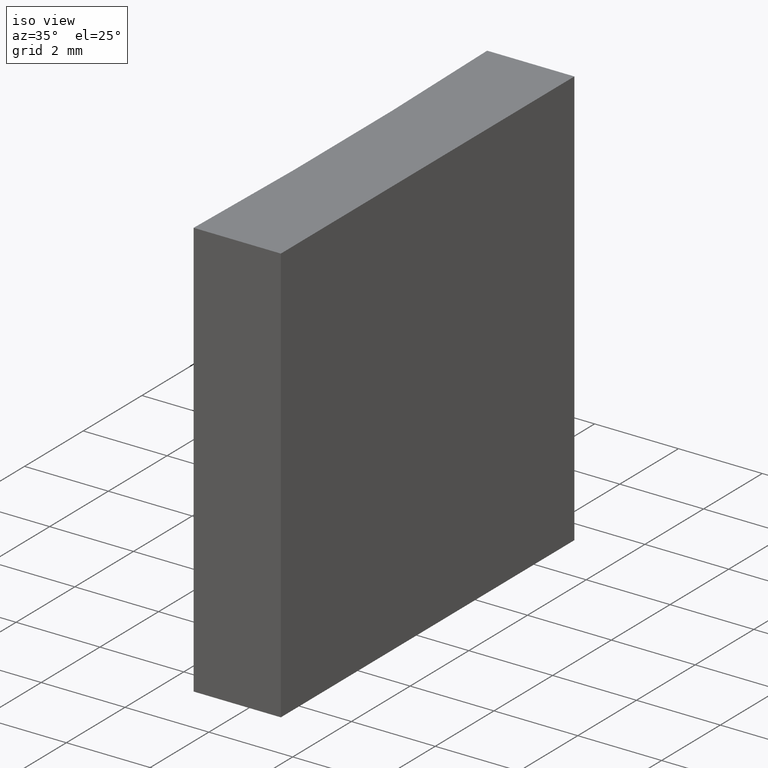
[diagram: clean part render]
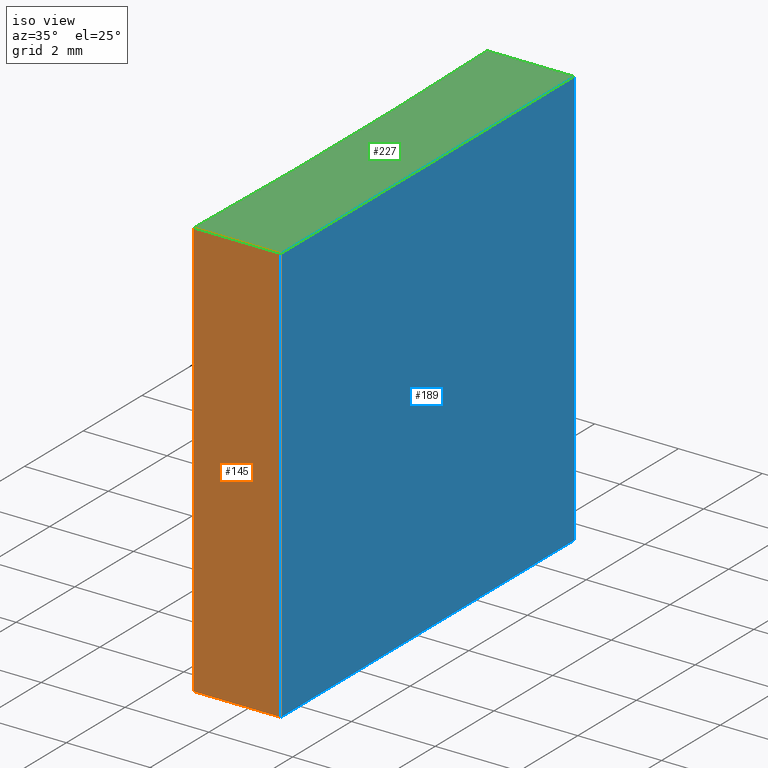
[diagram: same view with three faces highlighted in distinct colors, each labeled with its STEP entity id]
A machine part, iso view with three faces highlighted in distinct colors.
Their STEP definitions:

[orange] entity #145 — the highlighted planar face has unit normal (0, 1, -0).
#8 = ORIENTED_EDGE ( 'NONE', *, *, #207, .F. ) ;
#14 = EDGE_CURVE ( 'NONE', #208, #173, #41, .T. ) ;
#15 = FACE_OUTER_BOUND ( 'NONE', #77, .T. ) ;
#17 = AXIS2_PLACEMENT_3D ( 'NONE', #213, #105, #110 ) ;
#22 = ORIENTED_EDGE ( 'NONE', *, *, #14, .T. ) ;
#28 = VECTOR ( 'NONE', #178, 1000.000000000000000 ) ;
#30 = CARTESIAN_POINT ( 'NONE',  ( 70.94557387853004116, -51.01151266271151030, 10.00000000000000000 ) ) ;
#32 = DIRECTION ( 'NONE',  ( 1.000000000000000000, -6.672013369141570542E-15, 0.000000000000000000 ) ) ;
#36 = PLANE ( 'NONE',  #17 ) ;
#41 = LINE ( 'NONE', #187, #165 ) ;
#43 = ORIENTED_EDGE ( 'NONE', *, *, #57, .T. ) ;
#57 = EDGE_CURVE ( 'NONE', #61, #208, #119, .T. ) ;
#61 = VERTEX_POINT ( 'NONE', #85 ) ;
#68 = DIRECTION ( 'NONE',  ( -0.000000000000000000, -0.000000000000000000, -1.000000000000000000 ) ) ;
#77 = EDGE_LOOP ( 'NONE', ( #22, #8, #146, #43 ) ) ;
#85 = CARTESIAN_POINT ( 'NONE',  ( 70.94557387853004116, -51.01151266271151030, 10.00000000000000000 ) ) ;
#96 = VECTOR ( 'NONE', #32, 1000.000000000000000 ) ;
#105 = DIRECTION ( 'NONE',  ( 6.672013369141570542E-15, 1.000000000000000000, -0.000000000000000000 ) ) ;
#110 = DIRECTION ( 'NONE',  ( -1.000000000000000000, 6.672013369141570542E-15, 0.000000000000000000 ) ) ;
#119 = LINE ( 'NONE', #234, #28 ) ;
#131 = VERTEX_POINT ( 'NONE', #133 ) ;
#133 = CARTESIAN_POINT ( 'NONE',  ( 73.02557387853003945, -51.01151266271152451, 10.00000000000000000 ) ) ;
#135 = LINE ( 'NONE', #153, #223 ) ;
#137 = EDGE_CURVE ( 'NONE', #61, #131, #196, .T. ) ;
#138 = CARTESIAN_POINT ( 'NONE',  ( 70.94557387853004116, -51.01151266271151030, 0.000000000000000000 ) ) ;
#145 = ADVANCED_FACE ( 'NONE', ( #15 ), #36, .F. ) ;
#146 = ORIENTED_EDGE ( 'NONE', *, *, #137, .F. ) ;
#153 = CARTESIAN_POINT ( 'NONE',  ( 73.02557387853003945, -51.01151266271152451, 10.00000000000000000 ) ) ;
#165 = VECTOR ( 'NONE', #168, 1000.000000000000000 ) ;
#168 = DIRECTION ( 'NONE',  ( 1.000000000000000000, -6.672013369141570542E-15, 0.000000000000000000 ) ) ;
#173 = VERTEX_POINT ( 'NONE', #218 ) ;
#178 = DIRECTION ( 'NONE',  ( -0.000000000000000000, -0.000000000000000000, -1.000000000000000000 ) ) ;
#187 = CARTESIAN_POINT ( 'NONE',  ( 70.94557387853004116, -51.01151266271151030, 0.000000000000000000 ) ) ;
#196 = LINE ( 'NONE', #30, #96 ) ;
#207 = EDGE_CURVE ( 'NONE', #131, #173, #135, .T. ) ;
#208 = VERTEX_POINT ( 'NONE', #138 ) ;
#213 = CARTESIAN_POINT ( 'NONE',  ( 70.94557387853004116, -51.01151266271151030, 10.00000000000000000 ) ) ;
#218 = CARTESIAN_POINT ( 'NONE',  ( 73.02557387853003945, -51.01151266271152451, 0.000000000000000000 ) ) ;
#223 = VECTOR ( 'NONE', #68, 1000.000000000000000 ) ;
#234 = CARTESIAN_POINT ( 'NONE',  ( 70.94557387853004116, -51.01151266271151030, 10.00000000000000000 ) ) ;

[blue] entity #189 — the highlighted planar face has unit normal (-1, 0, 0).
#2 = PLANE ( 'NONE',  #80 ) ;
#21 = EDGE_CURVE ( 'NONE', #224, #128, #205, .T. ) ;
#23 = DIRECTION ( 'NONE',  ( -0.000000000000000000, -0.000000000000000000, -1.000000000000000000 ) ) ;
#25 = ORIENTED_EDGE ( 'NONE', *, *, #21, .F. ) ;
#39 = VECTOR ( 'NONE', #87, 1000.000000000000000 ) ;
#42 = CARTESIAN_POINT ( 'NONE',  ( 73.02557387853005366, -41.01151266271152451, 10.00000000000000000 ) ) ;
#52 = DIRECTION ( 'NONE',  ( -1.387778780781445478E-15, -1.000000000000000000, 0.000000000000000000 ) ) ;
#68 = DIRECTION ( 'NONE',  ( -0.000000000000000000, -0.000000000000000000, -1.000000000000000000 ) ) ;
#72 = CARTESIAN_POINT ( 'NONE',  ( 73.02557387853005366, -41.01151266271152451, 10.00000000000000000 ) ) ;
#73 = CARTESIAN_POINT ( 'NONE',  ( 73.02557387853005366, -41.01151266271152451, 10.00000000000000000 ) ) ;
#80 = AXIS2_PLACEMENT_3D ( 'NONE', #72, #152, #52 ) ;
#82 = EDGE_LOOP ( 'NONE', ( #192, #25, #125, #204 ) ) ;
#87 = DIRECTION ( 'NONE',  ( 1.387778780781445478E-15, 1.000000000000000000, -0.000000000000000000 ) ) ;
#93 = VECTOR ( 'NONE', #23, 1000.000000000000000 ) ;
#103 = CARTESIAN_POINT ( 'NONE',  ( 73.02557387853005366, -41.01151266271152451, 0.000000000000000000 ) ) ;
#116 = LINE ( 'NONE', #176, #39 ) ;
#125 = ORIENTED_EDGE ( 'NONE', *, *, #232, .F. ) ;
#126 = VECTOR ( 'NONE', #177, 1000.000000000000000 ) ;
#128 = VERTEX_POINT ( 'NONE', #103 ) ;
#131 = VERTEX_POINT ( 'NONE', #133 ) ;
#133 = CARTESIAN_POINT ( 'NONE',  ( 73.02557387853003945, -51.01151266271152451, 10.00000000000000000 ) ) ;
#135 = LINE ( 'NONE', #153, #223 ) ;
#142 = FACE_OUTER_BOUND ( 'NONE', #82, .T. ) ;
#152 = DIRECTION ( 'NONE',  ( -1.000000000000000000, 1.387778780781445478E-15, 0.000000000000000000 ) ) ;
#153 = CARTESIAN_POINT ( 'NONE',  ( 73.02557387853003945, -51.01151266271152451, 10.00000000000000000 ) ) ;
#173 = VERTEX_POINT ( 'NONE', #218 ) ;
#176 = CARTESIAN_POINT ( 'NONE',  ( 73.02557387853005366, -41.01151266271152451, 0.000000000000000000 ) ) ;
#177 = DIRECTION ( 'NONE',  ( 1.387778780781445478E-15, 1.000000000000000000, -0.000000000000000000 ) ) ;
#184 = EDGE_CURVE ( 'NONE', #173, #128, #116, .T. ) ;
#189 = ADVANCED_FACE ( 'NONE', ( #142 ), #2, .F. ) ;
#192 = ORIENTED_EDGE ( 'NONE', *, *, #184, .T. ) ;
#194 = CARTESIAN_POINT ( 'NONE',  ( 73.02557387853005366, -41.01151266271152451, 10.00000000000000000 ) ) ;
#204 = ORIENTED_EDGE ( 'NONE', *, *, #207, .T. ) ;
#205 = LINE ( 'NONE', #42, #93 ) ;
#207 = EDGE_CURVE ( 'NONE', #131, #173, #135, .T. ) ;
#214 = LINE ( 'NONE', #194, #126 ) ;
#218 = CARTESIAN_POINT ( 'NONE',  ( 73.02557387853003945, -51.01151266271152451, 0.000000000000000000 ) ) ;
#223 = VECTOR ( 'NONE', #68, 1000.000000000000000 ) ;
#224 = VERTEX_POINT ( 'NONE', #73 ) ;
#232 = EDGE_CURVE ( 'NONE', #131, #224, #214, .T. ) ;

[green] entity #227 — the highlighted planar face has unit normal (0, 0, 1).
#7 = VERTEX_POINT ( 'NONE', #112 ) ;
#16 = DIRECTION ( 'NONE',  ( 1.000000000000000000, 0.000000000000000000, -0.000000000000000000 ) ) ;
#30 = CARTESIAN_POINT ( 'NONE',  ( 70.94557387853004116, -51.01151266271151030, 10.00000000000000000 ) ) ;
#31 = EDGE_CURVE ( 'NONE', #224, #7, #94, .T. ) ;
#32 = DIRECTION ( 'NONE',  ( 1.000000000000000000, -6.672013369141570542E-15, 0.000000000000000000 ) ) ;
#50 = DIRECTION ( 'NONE',  ( -1.000000000000000000, -0.000000000000000000, -0.000000000000000000 ) ) ;
#61 = VERTEX_POINT ( 'NONE', #85 ) ;
#63 = ORIENTED_EDGE ( 'NONE', *, *, #186, .T. ) ;
#66 = DIRECTION ( 'NONE',  ( 1.000000000000000000, 0.000000000000000000, 0.000000000000000000 ) ) ;
#73 = CARTESIAN_POINT ( 'NONE',  ( 73.02557387853005366, -41.01151266271152451, 10.00000000000000000 ) ) ;
#85 = CARTESIAN_POINT ( 'NONE',  ( 70.94557387853004116, -51.01151266271151030, 10.00000000000000000 ) ) ;
#94 = LINE ( 'NONE', #108, #129 ) ;
#96 = VECTOR ( 'NONE', #32, 1000.000000000000000 ) ;
#99 = EDGE_LOOP ( 'NONE', ( #63, #100, #229, #150 ) ) ;
#100 = ORIENTED_EDGE ( 'NONE', *, *, #137, .T. ) ;
#101 = DIRECTION ( 'NONE',  ( -0.000000000000000000, -0.000000000000000000, -1.000000000000000000 ) ) ;
#108 = CARTESIAN_POINT ( 'NONE',  ( 70.94557387853005537, -41.01151266271152451, 10.00000000000000000 ) ) ;
#112 = CARTESIAN_POINT ( 'NONE',  ( 70.94557387853005537, -41.01151266271152451, 10.00000000000000000 ) ) ;
#117 = CARTESIAN_POINT ( 'NONE',  ( -84.07381200594568327, -46.01151266271130424, 10.00000000000000000 ) ) ;
#126 = VECTOR ( 'NONE', #177, 1000.000000000000000 ) ;
#129 = VECTOR ( 'NONE', #50, 1000.000000000000000 ) ;
#131 = VERTEX_POINT ( 'NONE', #133 ) ;
#133 = CARTESIAN_POINT ( 'NONE',  ( 73.02557387853003945, -51.01151266271152451, 10.00000000000000000 ) ) ;
#137 = EDGE_CURVE ( 'NONE', #61, #131, #196, .T. ) ;
#150 = ORIENTED_EDGE ( 'NONE', *, *, #31, .T. ) ;
#159 = DIRECTION ( 'NONE',  ( 0.000000000000000000, 0.000000000000000000, 1.000000000000000000 ) ) ;
#171 = CIRCLE ( 'NONE', #190, 155.0999999999999659 ) ;
#177 = DIRECTION ( 'NONE',  ( 1.387778780781445478E-15, 1.000000000000000000, -0.000000000000000000 ) ) ;
#186 = EDGE_CURVE ( 'NONE', #7, #61, #171, .T. ) ;
#190 = AXIS2_PLACEMENT_3D ( 'NONE', #197, #101, #66 ) ;
#194 = CARTESIAN_POINT ( 'NONE',  ( 73.02557387853005366, -41.01151266271152451, 10.00000000000000000 ) ) ;
#196 = LINE ( 'NONE', #30, #96 ) ;
#197 = CARTESIAN_POINT ( 'NONE',  ( -84.07381200594568327, -46.01151266271130424, 10.00000000000000000 ) ) ;
#211 = AXIS2_PLACEMENT_3D ( 'NONE', #117, #159, #16 ) ;
#214 = LINE ( 'NONE', #194, #126 ) ;
#219 = PLANE ( 'NONE',  #211 ) ;
#224 = VERTEX_POINT ( 'NONE', #73 ) ;
#227 = ADVANCED_FACE ( 'NONE', ( #236 ), #219, .T. ) ;
#229 = ORIENTED_EDGE ( 'NONE', *, *, #232, .T. ) ;
#232 = EDGE_CURVE ( 'NONE', #131, #224, #214, .T. ) ;
#236 = FACE_OUTER_BOUND ( 'NONE', #99, .T. ) ;